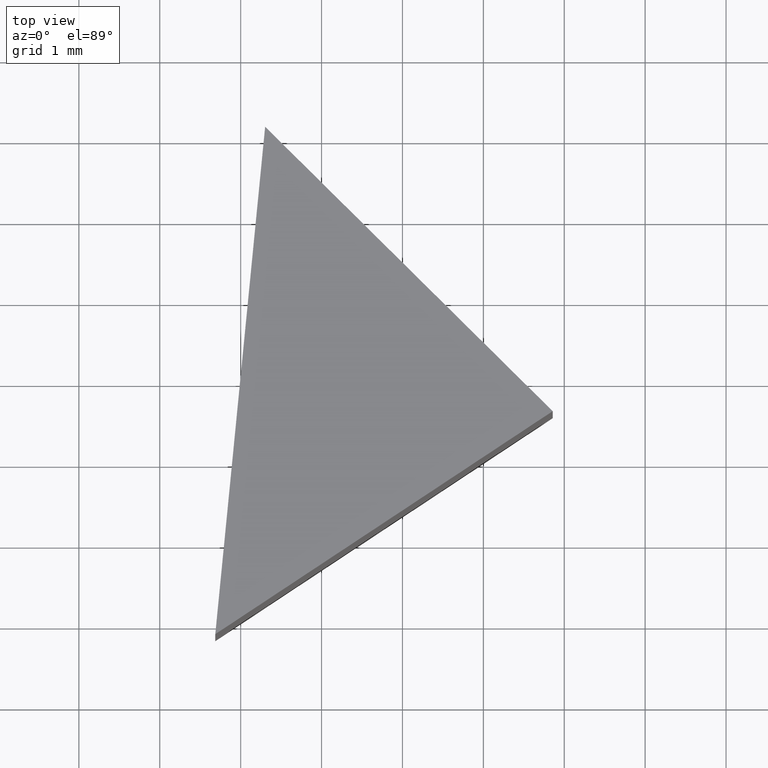
[diagram: clean part render]
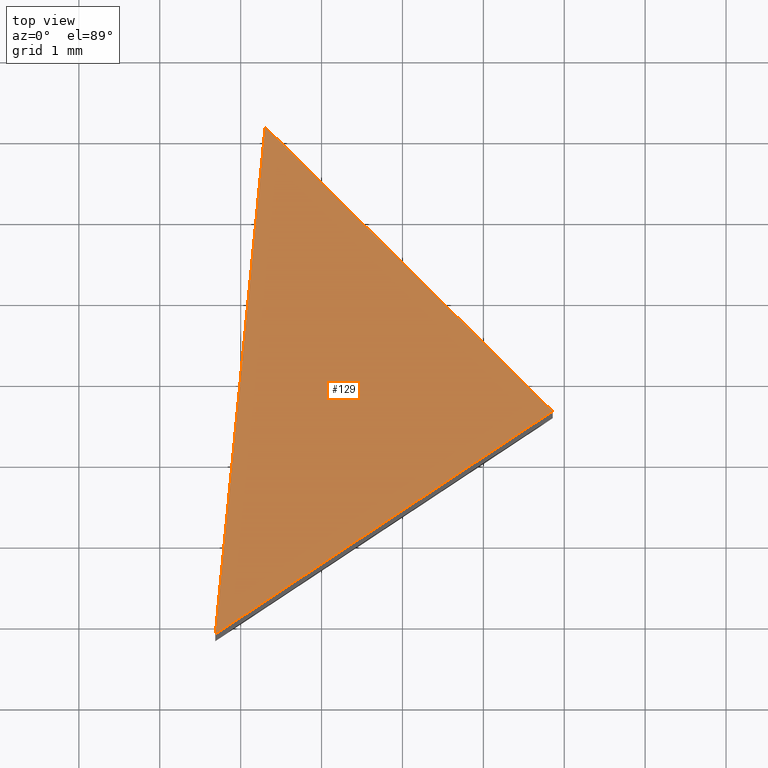
[diagram: same view with one face highlighted and labeled with its STEP entity id]
A machine part, top view. The second image highlights one B-rep face of the part: STEP entity #129.
In plain terms, the highlighted planar face has unit normal (0, 0, -1).
Its self-contained STEP definition (entity closure, byte-faithful):
#4 = CARTESIAN_POINT ( 'NONE',  ( 0.6861709744360347000, 0.8474711050240408800, 5.000000000000000000 ) ) ;
#11 = EDGE_LOOP ( 'NONE', ( #15, #122, #83 ) ) ;
#15 = ORIENTED_EDGE ( 'NONE', *, *, #162, .T. ) ;
#18 = VECTOR ( 'NONE', #82, 1000.000000000000000 ) ;
#23 = DIRECTION ( 'NONE',  ( -0.09777970958415417600, -0.9952080829623715100, -0.0000000000000000000 ) ) ;
#26 = CARTESIAN_POINT ( 'NONE',  ( 0.6861709744360347000, 0.8474711050240408800, 5.000000000000000000 ) ) ;
#29 = CARTESIAN_POINT ( 'NONE',  ( 1.302506795028856200, 7.120576160069372700, 5.000000000000000000 ) ) ;
#33 = FACE_OUTER_BOUND ( 'NONE', #11, .T. ) ;
#44 = CARTESIAN_POINT ( 'NONE',  ( 4.857370913066168000, 3.604478735041047000, 5.000000000000000000 ) ) ;
#47 = DIRECTION ( 'NONE',  ( -1.000000000000000000, 0.0000000000000000000, 0.0000000000000000000 ) ) ;
#64 = CARTESIAN_POINT ( 'NONE',  ( 4.857370913066168000, 3.604478735041047000, 5.000000000000000000 ) ) ;
#80 = VERTEX_POINT ( 'NONE', #26 ) ;
#82 = DIRECTION ( 'NONE',  ( 0.8342399877260263700, 0.5514015260034012000, -0.0000000000000000000 ) ) ;
#83 = ORIENTED_EDGE ( 'NONE', *, *, #143, .T. ) ;
#84 = LINE ( 'NONE', #64, #18 ) ;
#89 = VECTOR ( 'NONE', #23, 1000.000000000000000 ) ;
#115 = AXIS2_PLACEMENT_3D ( 'NONE', #128, #124, #47 ) ;
#119 = VECTOR ( 'NONE', #131, 1000.000000000000100 ) ;
#120 = VERTEX_POINT ( 'NONE', #29 ) ;
#122 = ORIENTED_EDGE ( 'NONE', *, *, #146, .T. ) ;
#124 = DIRECTION ( 'NONE',  ( 0.0000000000000000000, 0.0000000000000000000, -1.000000000000000000 ) ) ;
#127 = LINE ( 'NONE', #4, #89 ) ;
#128 = CARTESIAN_POINT ( 'NONE',  ( 0.0000000000000000000, 0.0000000000000000000, 5.000000000000000000 ) ) ;
#129 = ADVANCED_FACE ( 'NONE', ( #33 ), #152, .F. ) ;
#131 = DIRECTION ( 'NONE',  ( -0.7109728236074620600, 0.7032194850056648900, 0.0000000000000000000 ) ) ;
#132 = CARTESIAN_POINT ( 'NONE',  ( 4.857370913066168000, 3.604478735041047000, 5.000000000000000000 ) ) ;
#143 = EDGE_CURVE ( 'NONE', #120, #80, #127, .T. ) ;
#146 = EDGE_CURVE ( 'NONE', #156, #120, #157, .T. ) ;
#152 = PLANE ( 'NONE',  #115 ) ;
#156 = VERTEX_POINT ( 'NONE', #132 ) ;
#157 = LINE ( 'NONE', #44, #119 ) ;
#162 = EDGE_CURVE ( 'NONE', #80, #156, #84, .T. ) ;